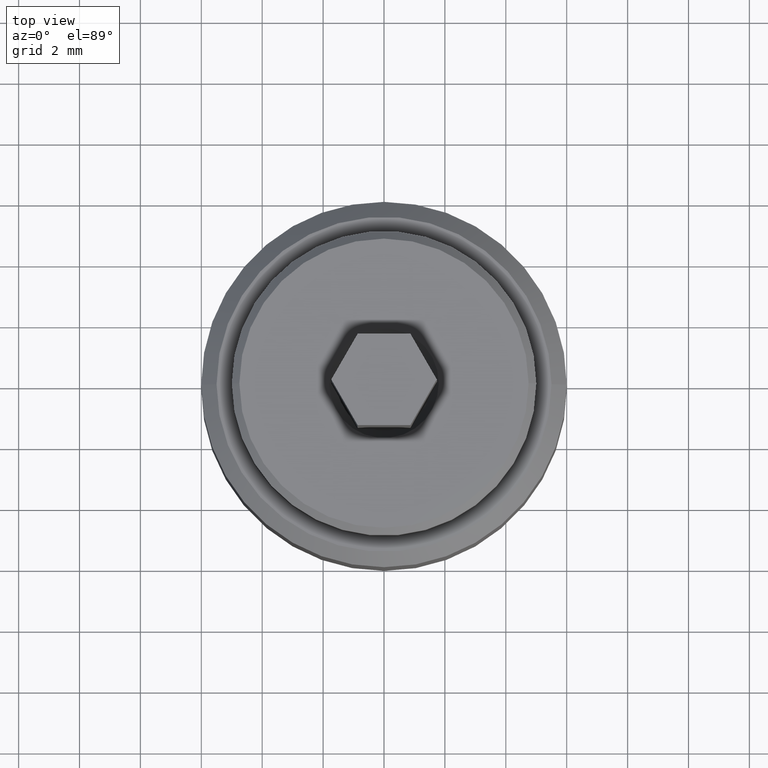
[diagram: clean part render]
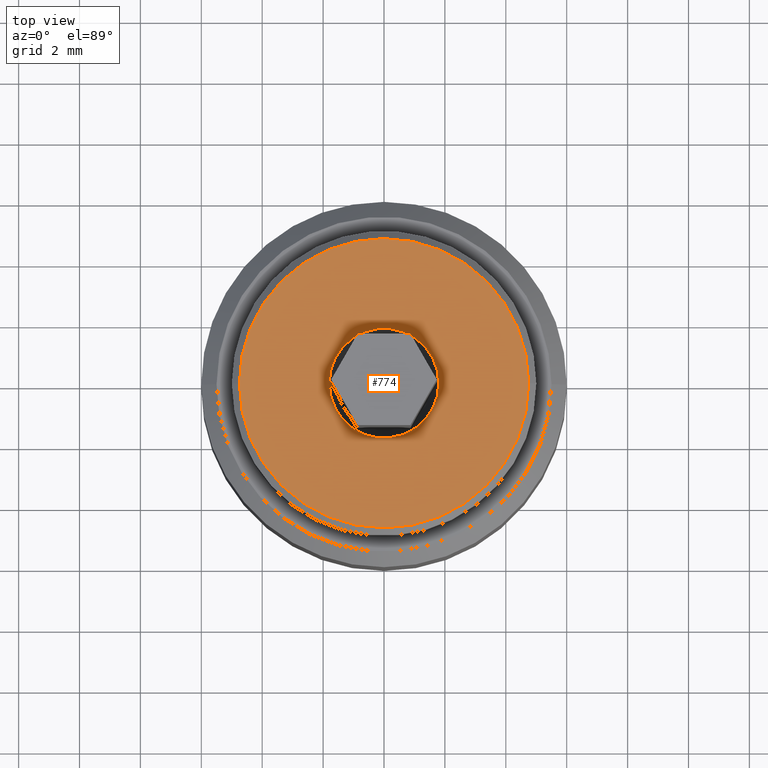
[diagram: same view with one face highlighted and labeled with its STEP entity id]
A machine part, top view. The second image highlights one B-rep face of the part: STEP entity #774.
In plain terms, the highlighted planar face has unit normal (0, 0, 1).
Its self-contained STEP definition (entity closure, byte-faithful):
#2 = VERTEX_POINT ( 'NONE', #408 ) ;
#15 = ORIENTED_EDGE ( 'NONE', *, *, #799, .T. ) ;
#59 = CIRCLE ( 'NONE', #622, 4.750000000000007105 ) ;
#64 = DIRECTION ( 'NONE',  ( 1.000000000000000000, 0.000000000000000000, 0.000000000000000000 ) ) ;
#90 = VERTEX_POINT ( 'NONE', #955 ) ;
#125 = VERTEX_POINT ( 'NONE', #216 ) ;
#140 = VERTEX_POINT ( 'NONE', #837 ) ;
#142 = DIRECTION ( 'NONE',  ( -0.000000000000000000, -0.000000000000000000, -1.000000000000000000 ) ) ;
#150 = DIRECTION ( 'NONE',  ( 1.000000000000000000, 0.000000000000000000, 0.000000000000000000 ) ) ;
#196 = AXIS2_PLACEMENT_3D ( 'NONE', #802, #889, #201 ) ;
#201 = DIRECTION ( 'NONE',  ( 1.000000000000000000, 0.000000000000000000, -0.000000000000000000 ) ) ;
#214 = ORIENTED_EDGE ( 'NONE', *, *, #967, .T. ) ;
#216 = CARTESIAN_POINT ( 'NONE',  ( 1.800000000000001377, 0.000000000000000000, 10.00000000000000000 ) ) ;
#248 = AXIS2_PLACEMENT_3D ( 'NONE', #385, #846, #150 ) ;
#261 = PLANE ( 'NONE',  #196 ) ;
#306 = EDGE_CURVE ( 'NONE', #2, #125, #947, .T. ) ;
#349 = ORIENTED_EDGE ( 'NONE', *, *, #306, .T. ) ;
#350 = AXIS2_PLACEMENT_3D ( 'NONE', #983, #142, #841 ) ;
#385 = CARTESIAN_POINT ( 'NONE',  ( 0.000000000000000000, 0.000000000000000000, 10.00000000000000000 ) ) ;
#408 = CARTESIAN_POINT ( 'NONE',  ( -1.800000000000001377, 2.204364238465237548E-16, 10.00000000000000000 ) ) ;
#428 = CARTESIAN_POINT ( 'NONE',  ( 0.000000000000000000, 0.000000000000000000, 10.00000000000000000 ) ) ;
#438 = DIRECTION ( 'NONE',  ( 1.000000000000000000, 0.000000000000000000, 0.000000000000000000 ) ) ;
#465 = CIRCLE ( 'NONE', #248, 1.800000000000001377 ) ;
#515 = ORIENTED_EDGE ( 'NONE', *, *, #638, .T. ) ;
#583 = FACE_OUTER_BOUND ( 'NONE', #754, .T. ) ;
#604 = DIRECTION ( 'NONE',  ( 0.000000000000000000, 0.000000000000000000, 1.000000000000000000 ) ) ;
#622 = AXIS2_PLACEMENT_3D ( 'NONE', #755, #604, #64 ) ;
#638 = EDGE_CURVE ( 'NONE', #140, #90, #882, .T. ) ;
#658 = EDGE_LOOP ( 'NONE', ( #15, #349 ) ) ;
#661 = DIRECTION ( 'NONE',  ( 0.000000000000000000, 0.000000000000000000, 1.000000000000000000 ) ) ;
#675 = FACE_BOUND ( 'NONE', #658, .T. ) ;
#754 = EDGE_LOOP ( 'NONE', ( #515, #214 ) ) ;
#755 = CARTESIAN_POINT ( 'NONE',  ( 0.000000000000000000, 0.000000000000000000, 10.00000000000000000 ) ) ;
#774 = ADVANCED_FACE ( 'NONE', ( #675, #583 ), #261, .T. ) ;
#799 = EDGE_CURVE ( 'NONE', #125, #2, #465, .T. ) ;
#802 = CARTESIAN_POINT ( 'NONE',  ( 0.000000000000000000, 0.000000000000000000, 10.00000000000000000 ) ) ;
#837 = CARTESIAN_POINT ( 'NONE',  ( -4.750000000000007105, 0.000000000000000000, 10.00000000000000000 ) ) ;
#841 = DIRECTION ( 'NONE',  ( 1.000000000000000000, 0.000000000000000000, 0.000000000000000000 ) ) ;
#846 = DIRECTION ( 'NONE',  ( -0.000000000000000000, -0.000000000000000000, -1.000000000000000000 ) ) ;
#849 = AXIS2_PLACEMENT_3D ( 'NONE', #428, #661, #438 ) ;
#882 = CIRCLE ( 'NONE', #849, 4.750000000000007105 ) ;
#889 = DIRECTION ( 'NONE',  ( 0.000000000000000000, 0.000000000000000000, 1.000000000000000000 ) ) ;
#947 = CIRCLE ( 'NONE', #350, 1.800000000000001377 ) ;
#955 = CARTESIAN_POINT ( 'NONE',  ( 4.750000000000007105, 5.970153145843351291E-16, 10.00000000000000000 ) ) ;
#967 = EDGE_CURVE ( 'NONE', #90, #140, #59, .T. ) ;
#983 = CARTESIAN_POINT ( 'NONE',  ( 0.000000000000000000, 0.000000000000000000, 10.00000000000000000 ) ) ;